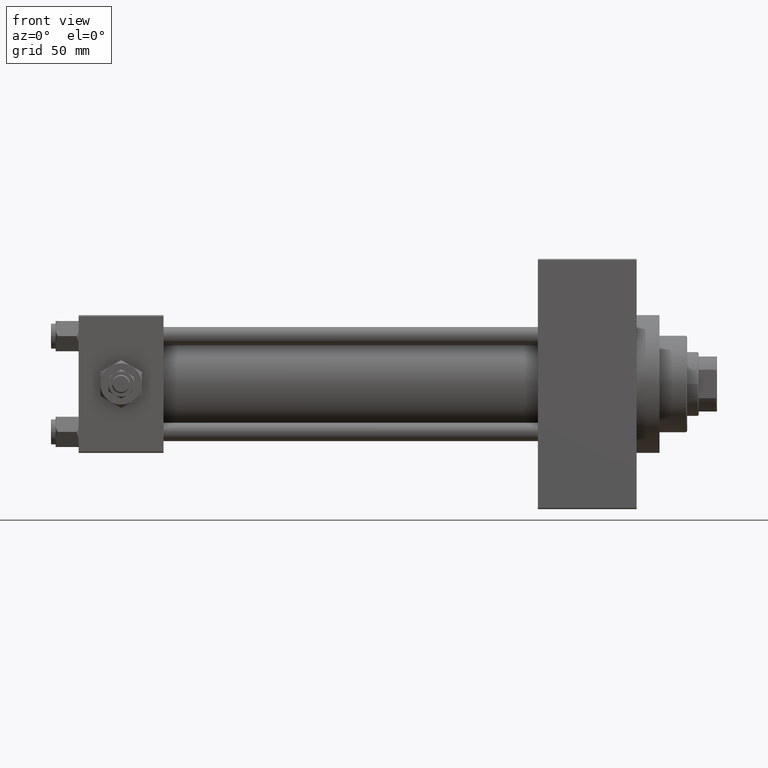
[diagram: clean part render]
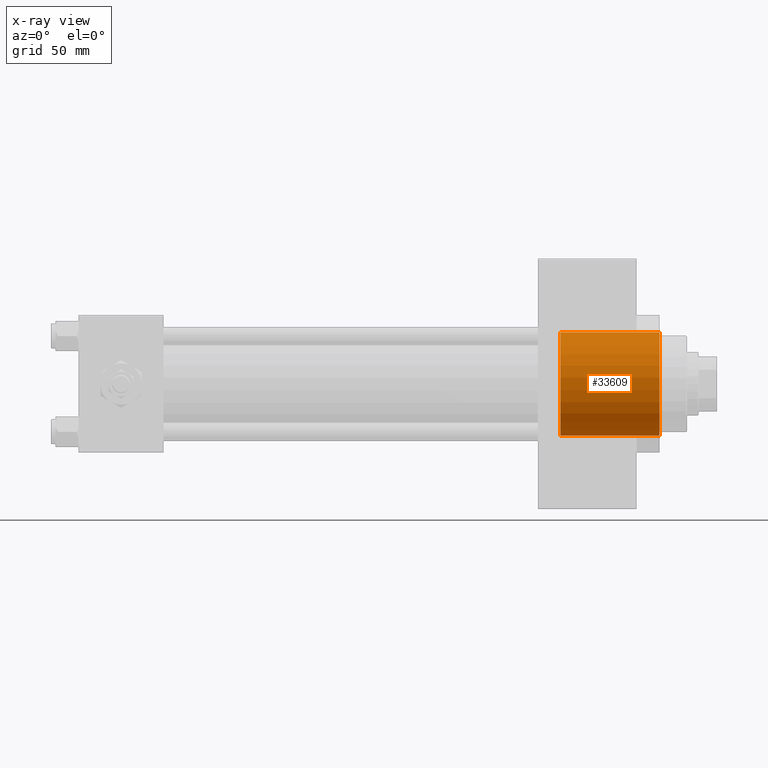
[diagram: x-ray — body ghosted, one internal face saturated and labeled with its STEP entity id]
A machine part, front view, then the same camera in x-ray: the body is ghosted and one INTERNAL B-rep face — a face not visible from any outside direction — is saturated and labeled: STEP entity #33609.
In plain terms, the highlighted cylindrical surface (partial cylindrical patch) has radius 22.5 mm, axis along (1, 0, 0).
Its self-contained STEP definition (entity closure, byte-faithful):
#307 = CARTESIAN_POINT ( 'NONE',  ( 253.0000000000000000, 2.755455298081545172E-15, 22.50000000000000355 ) ) ;
#1461 = FACE_OUTER_BOUND ( 'NONE', #5779, .T. ) ;
#1703 = CYLINDRICAL_SURFACE ( 'NONE', #32524, 22.50000000000000355 ) ;
#1934 = ORIENTED_EDGE ( 'NONE', *, *, #20589, .T. ) ;
#3520 = AXIS2_PLACEMENT_3D ( 'NONE', #14627, #7244, #3570 ) ;
#3570 = DIRECTION ( 'NONE',  ( 0.000000000000000000, 0.000000000000000000, -1.000000000000000000 ) ) ;
#3911 = DIRECTION ( 'NONE',  ( 0.000000000000000000, 0.000000000000000000, -1.000000000000000000 ) ) ;
#5779 = EDGE_LOOP ( 'NONE', ( #44183, #13689, #1934, #7205 ) ) ;
#7205 = ORIENTED_EDGE ( 'NONE', *, *, #48247, .F. ) ;
#7244 = DIRECTION ( 'NONE',  ( 1.000000000000000000, 0.000000000000000000, 0.000000000000000000 ) ) ;
#8839 = CARTESIAN_POINT ( 'NONE',  ( 209.7400000000000091, 0.000000000000000000, 0.000000000000000000 ) ) ;
#13159 = DIRECTION ( 'NONE',  ( 1.000000000000000000, -0.000000000000000000, -0.000000000000000000 ) ) ;
#13689 = ORIENTED_EDGE ( 'NONE', *, *, #19224, .T. ) ;
#14627 = CARTESIAN_POINT ( 'NONE',  ( 209.7400000000000091, 0.000000000000000000, 0.000000000000000000 ) ) ;
#15694 = VERTEX_POINT ( 'NONE', #307 ) ;
#16463 = DIRECTION ( 'NONE',  ( 0.000000000000000000, 0.000000000000000000, -1.000000000000000000 ) ) ;
#19224 = EDGE_CURVE ( 'NONE', #35191, #15694, #28828, .T. ) ;
#20548 = CARTESIAN_POINT ( 'NONE',  ( 209.7400000000000091, 0.000000000000000000, -22.50000000000000355 ) ) ;
#20589 = EDGE_CURVE ( 'NONE', #15694, #23870, #42470, .T. ) ;
#21559 = CARTESIAN_POINT ( 'NONE',  ( 209.7400000000000091, 0.000000000000000000, -22.50000000000000355 ) ) ;
#23870 = VERTEX_POINT ( 'NONE', #47092 ) ;
#24752 = CIRCLE ( 'NONE', #3520, 22.50000000000000355 ) ;
#24880 = CARTESIAN_POINT ( 'NONE',  ( 209.7400000000000091, 2.755455298081545172E-15, 22.50000000000000355 ) ) ;
#26660 = VECTOR ( 'NONE', #47552, 1000.000000000000000 ) ;
#28828 = LINE ( 'NONE', #24880, #26660 ) ;
#30923 = LINE ( 'NONE', #20548, #44577 ) ;
#32524 = AXIS2_PLACEMENT_3D ( 'NONE', #8839, #42112, #16463 ) ;
#33609 = ADVANCED_FACE ( 'NONE', ( #1461 ), #1703, .F. ) ;
#33953 = DIRECTION ( 'NONE',  ( 1.000000000000000000, 0.000000000000000000, 0.000000000000000000 ) ) ;
#35191 = VERTEX_POINT ( 'NONE', #45660 ) ;
#35999 = EDGE_CURVE ( 'NONE', #35191, #41036, #24752, .T. ) ;
#41036 = VERTEX_POINT ( 'NONE', #21559 ) ;
#42112 = DIRECTION ( 'NONE',  ( 1.000000000000000000, -0.000000000000000000, -0.000000000000000000 ) ) ;
#42331 = CARTESIAN_POINT ( 'NONE',  ( 253.0000000000000000, 0.000000000000000000, 0.000000000000000000 ) ) ;
#42470 = CIRCLE ( 'NONE', #47163, 22.50000000000000355 ) ;
#44183 = ORIENTED_EDGE ( 'NONE', *, *, #35999, .F. ) ;
#44577 = VECTOR ( 'NONE', #13159, 1000.000000000000000 ) ;
#45660 = CARTESIAN_POINT ( 'NONE',  ( 209.7400000000000091, 2.755455298081545172E-15, 22.50000000000000355 ) ) ;
#47092 = CARTESIAN_POINT ( 'NONE',  ( 253.0000000000000000, 0.000000000000000000, -22.50000000000000355 ) ) ;
#47163 = AXIS2_PLACEMENT_3D ( 'NONE', #42331, #33953, #3911 ) ;
#47552 = DIRECTION ( 'NONE',  ( 1.000000000000000000, -0.000000000000000000, -0.000000000000000000 ) ) ;
#48247 = EDGE_CURVE ( 'NONE', #41036, #23870, #30923, .T. ) ;